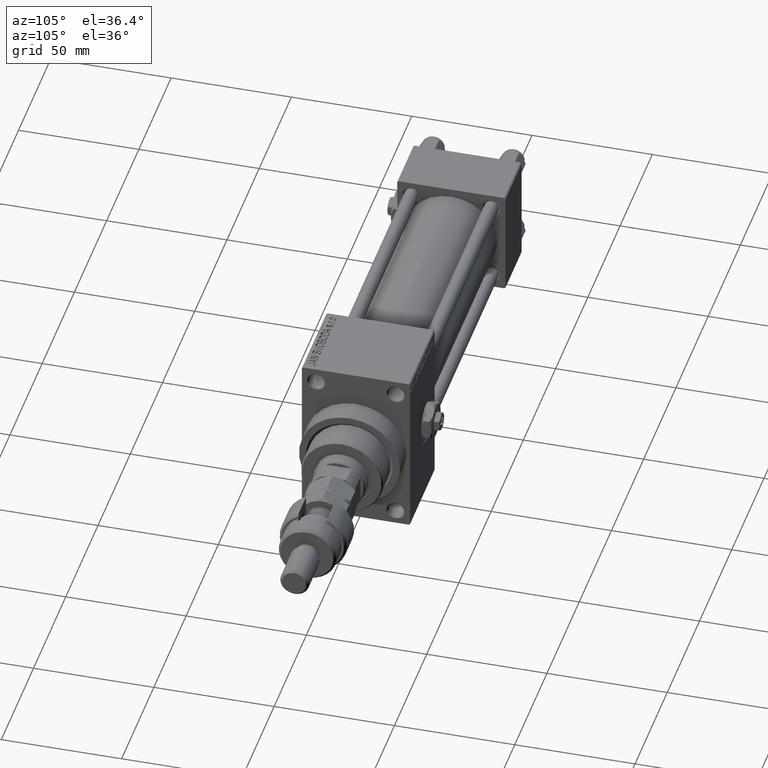
[diagram: clean part render]
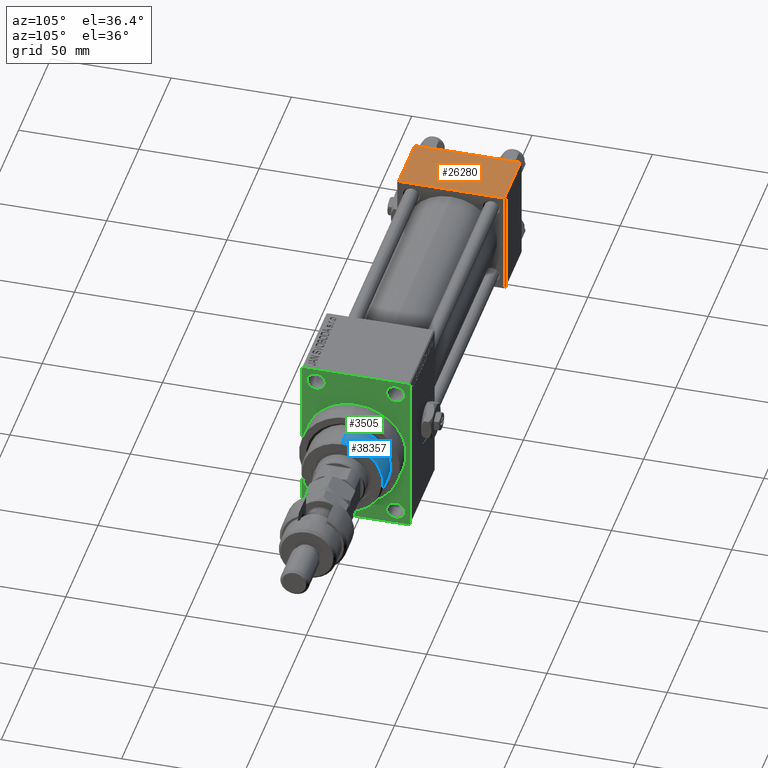
[diagram: same view with three faces highlighted in distinct colors, each labeled with its STEP entity id]
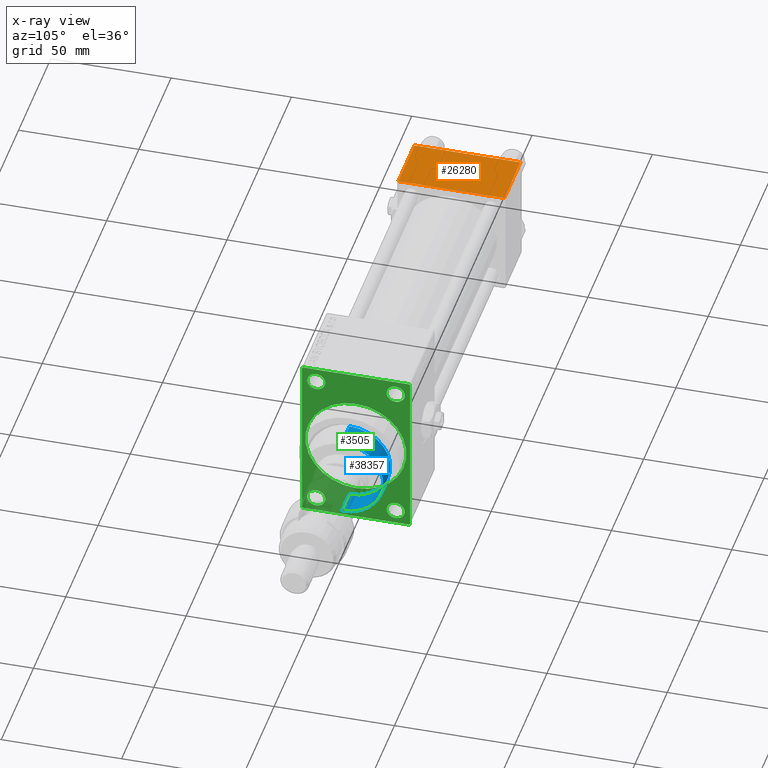
[diagram: x-ray of the same camera — body ghosted, the three highlighted faces saturated]
A machine part, auxiliary view with three faces highlighted in distinct colors.
The next image is the same camera in x-ray (body ghosted, the three faces saturated) — at least one of them is partly hidden behind the body in this view.
Their STEP definitions:

[orange] entity #26280 — the highlighted planar face has unit normal (0, 0, -1).
#1378 = CARTESIAN_POINT ( 'NONE',  ( 25.00000000000000000, 22.50000000000000000, 22.50000000000000355 ) ) ;
#1406 = ORIENTED_EDGE ( 'NONE', *, *, #24591, .T. ) ;
#1587 = CARTESIAN_POINT ( 'NONE',  ( 25.00000000000000000, 21.99999999999999289, 22.50000000000000355 ) ) ;
#2743 = DIRECTION ( 'NONE',  ( 0.000000000000000000, -1.000000000000000000, -7.709882115452476934E-17 ) ) ;
#3548 = CARTESIAN_POINT ( 'NONE',  ( 0.000000000000000000, 21.99999999999999289, 22.50000000000000355 ) ) ;
#5277 = LINE ( 'NONE', #1378, #32098 ) ;
#6695 = VERTEX_POINT ( 'NONE', #49053 ) ;
#6777 = EDGE_CURVE ( 'NONE', #47818, #6695, #41726, .T. ) ;
#7059 = ORIENTED_EDGE ( 'NONE', *, *, #26063, .T. ) ;
#7067 = CARTESIAN_POINT ( 'NONE',  ( 25.00000000000000000, 22.50000000000000000, 22.50000000000000355 ) ) ;
#8550 = ORIENTED_EDGE ( 'NONE', *, *, #6777, .T. ) ;
#10525 = EDGE_CURVE ( 'NONE', #31506, #26082, #5277, .T. ) ;
#11752 = FACE_OUTER_BOUND ( 'NONE', #24015, .T. ) ;
#13906 = CARTESIAN_POINT ( 'NONE',  ( 0.000000000000000000, 22.50000000000000000, 22.50000000000000355 ) ) ;
#13932 = VECTOR ( 'NONE', #26874, 1000.000000000000000 ) ;
#17231 = DIRECTION ( 'NONE',  ( 0.000000000000000000, -1.000000000000000000, -7.709882115452476934E-17 ) ) ;
#19341 = CARTESIAN_POINT ( 'NONE',  ( 25.00000000000000000, -21.99999999999999289, 22.50000000000000000 ) ) ;
#20868 = CARTESIAN_POINT ( 'NONE',  ( 25.00000000000000000, -21.99999999999997868, 22.50000000000000000 ) ) ;
#24012 = LINE ( 'NONE', #19341, #13932 ) ;
#24015 = EDGE_LOOP ( 'NONE', ( #8550, #7059, #38646, #1406 ) ) ;
#24591 = EDGE_CURVE ( 'NONE', #31506, #47818, #43247, .T. ) ;
#26063 = EDGE_CURVE ( 'NONE', #6695, #26082, #24012, .T. ) ;
#26082 = VERTEX_POINT ( 'NONE', #20868 ) ;
#26280 = ADVANCED_FACE ( 'NONE', ( #11752 ), #26562, .F. ) ;
#26562 = PLANE ( 'NONE',  #27226 ) ;
#26874 = DIRECTION ( 'NONE',  ( 1.000000000000000000, 0.000000000000000000, 0.000000000000000000 ) ) ;
#27226 = AXIS2_PLACEMENT_3D ( 'NONE', #7067, #47399, #31504 ) ;
#29662 = VECTOR ( 'NONE', #47691, 1000.000000000000000 ) ;
#31504 = DIRECTION ( 'NONE',  ( 0.000000000000000000, 1.000000000000000000, 7.709882115452476934E-17 ) ) ;
#31506 = VERTEX_POINT ( 'NONE', #1587 ) ;
#32098 = VECTOR ( 'NONE', #17231, 1000.000000000000000 ) ;
#35692 = CARTESIAN_POINT ( 'NONE',  ( 0.000000000000000000, 21.99999999999999289, 22.50000000000000355 ) ) ;
#38646 = ORIENTED_EDGE ( 'NONE', *, *, #10525, .F. ) ;
#41726 = LINE ( 'NONE', #13906, #48714 ) ;
#43247 = LINE ( 'NONE', #35692, #29662 ) ;
#47399 = DIRECTION ( 'NONE',  ( 0.000000000000000000, 7.709882115452476934E-17, -1.000000000000000000 ) ) ;
#47691 = DIRECTION ( 'NONE',  ( -1.000000000000000000, 0.000000000000000000, 0.000000000000000000 ) ) ;
#47818 = VERTEX_POINT ( 'NONE', #3548 ) ;
#48714 = VECTOR ( 'NONE', #2743, 1000.000000000000000 ) ;
#49053 = CARTESIAN_POINT ( 'NONE',  ( 0.000000000000000000, -21.99999999999997868, 22.50000000000000000 ) ) ;

[blue] entity #38357 — the highlighted cylindrical surface (partial cylindrical patch) has radius 17 mm, axis along (-1, 0, 0).
#1815 = CARTESIAN_POINT ( 'NONE',  ( 0.000000000000000000, 0.000000000000000000, 43.25999999999999801 ) ) ;
#2836 = ORIENTED_EDGE ( 'NONE', *, *, #49402, .T. ) ;
#3876 = CARTESIAN_POINT ( 'NONE',  ( 17.00000000000000000, 2.081899558550500280E-15, 55.26000000000000512 ) ) ;
#4194 = EDGE_CURVE ( 'NONE', #29231, #49220, #8785, .T. ) ;
#6485 = DIRECTION ( 'NONE',  ( 1.000000000000000000, 0.000000000000000000, 0.000000000000000000 ) ) ;
#6572 = CYLINDRICAL_SURFACE ( 'NONE', #35886, 17.00000000000000000 ) ;
#7084 = FACE_OUTER_BOUND ( 'NONE', #40685, .T. ) ;
#8685 = EDGE_CURVE ( 'NONE', #44914, #12318, #20457, .T. ) ;
#8785 = LINE ( 'NONE', #3876, #40314 ) ;
#9876 = EDGE_CURVE ( 'NONE', #29231, #44914, #16284, .T. ) ;
#12318 = VERTEX_POINT ( 'NONE', #29972 ) ;
#12686 = DIRECTION ( 'NONE',  ( -0.000000000000000000, -0.000000000000000000, -1.000000000000000000 ) ) ;
#14629 = DIRECTION ( 'NONE',  ( -0.000000000000000000, -0.000000000000000000, -1.000000000000000000 ) ) ;
#16284 = CIRCLE ( 'NONE', #18766, 17.00000000000000000 ) ;
#17996 = DIRECTION ( 'NONE',  ( 0.000000000000000000, 0.000000000000000000, -1.000000000000000000 ) ) ;
#18766 = AXIS2_PLACEMENT_3D ( 'NONE', #49493, #17996, #34379 ) ;
#19027 = ORIENTED_EDGE ( 'NONE', *, *, #9876, .T. ) ;
#20457 = LINE ( 'NONE', #44399, #28804 ) ;
#22931 = DIRECTION ( 'NONE',  ( -1.000000000000000000, 0.000000000000000000, 0.000000000000000000 ) ) ;
#26490 = AXIS2_PLACEMENT_3D ( 'NONE', #1815, #29609, #6485 ) ;
#28260 = DIRECTION ( 'NONE',  ( -0.000000000000000000, -0.000000000000000000, -1.000000000000000000 ) ) ;
#28804 = VECTOR ( 'NONE', #28260, 1000.000000000000000 ) ;
#29231 = VERTEX_POINT ( 'NONE', #50742 ) ;
#29609 = DIRECTION ( 'NONE',  ( 0.000000000000000000, 0.000000000000000000, 1.000000000000000000 ) ) ;
#29972 = CARTESIAN_POINT ( 'NONE',  ( -17.00000000000000000, 0.000000000000000000, 43.25999999999999801 ) ) ;
#34379 = DIRECTION ( 'NONE',  ( 1.000000000000000000, 0.000000000000000000, 0.000000000000000000 ) ) ;
#35886 = AXIS2_PLACEMENT_3D ( 'NONE', #50290, #14629, #22931 ) ;
#37658 = ORIENTED_EDGE ( 'NONE', *, *, #4194, .F. ) ;
#38357 = ADVANCED_FACE ( 'NONE', ( #7084 ), #6572, .T. ) ;
#40124 = ORIENTED_EDGE ( 'NONE', *, *, #8685, .T. ) ;
#40314 = VECTOR ( 'NONE', #12686, 1000.000000000000000 ) ;
#40685 = EDGE_LOOP ( 'NONE', ( #37658, #19027, #40124, #2836 ) ) ;
#44399 = CARTESIAN_POINT ( 'NONE',  ( -17.00000000000000000, 0.000000000000000000, 55.26000000000000512 ) ) ;
#44914 = VERTEX_POINT ( 'NONE', #45224 ) ;
#45224 = CARTESIAN_POINT ( 'NONE',  ( -17.00000000000000000, 0.000000000000000000, 54.76000000000001222 ) ) ;
#46090 = CARTESIAN_POINT ( 'NONE',  ( 17.00000000000000000, 2.081899558550500280E-15, 43.25999999999999801 ) ) ;
#48942 = CIRCLE ( 'NONE', #26490, 17.00000000000000000 ) ;
#49220 = VERTEX_POINT ( 'NONE', #46090 ) ;
#49402 = EDGE_CURVE ( 'NONE', #12318, #49220, #48942, .T. ) ;
#49493 = CARTESIAN_POINT ( 'NONE',  ( 0.000000000000000000, 0.000000000000000000, 54.76000000000001222 ) ) ;
#50290 = CARTESIAN_POINT ( 'NONE',  ( 0.000000000000000000, 0.000000000000000000, 55.26000000000000512 ) ) ;
#50742 = CARTESIAN_POINT ( 'NONE',  ( 17.00000000000000000, 2.081899558550500280E-15, 54.76000000000001222 ) ) ;

[green] entity #3505 — the highlighted planar face has unit normal (-1, 0, 0).
#384 = DIRECTION ( 'NONE',  ( 0.000000000000000000, 0.000000000000000000, 1.000000000000000000 ) ) ;
#603 = ORIENTED_EDGE ( 'NONE', *, *, #25641, .T. ) ;
#657 = CIRCLE ( 'NONE', #26354, 3.750000000000166533 ) ;
#849 = FACE_BOUND ( 'NONE', #49625, .T. ) ;
#976 = LINE ( 'NONE', #33185, #23213 ) ;
#1308 = LINE ( 'NONE', #37694, #29731 ) ;
#2557 = VECTOR ( 'NONE', #26852, 1000.000000000000114 ) ;
#2697 = CARTESIAN_POINT ( 'NONE',  ( 173.0000000000000284, 22.49999999999999645, -35.00000000000000000 ) ) ;
#2778 = VERTEX_POINT ( 'NONE', #44662 ) ;
#2866 = DIRECTION ( 'NONE',  ( 0.000000000000000000, 0.000000000000000000, -1.000000000000000000 ) ) ;
#3013 = AXIS2_PLACEMENT_3D ( 'NONE', #11165, #30409, #2866 ) ;
#3505 = ADVANCED_FACE ( 'NONE', ( #16454, #33060, #849, #36716, #36958, #8655 ), #24742, .F. ) ;
#3926 = CARTESIAN_POINT ( 'NONE',  ( 173.0000000000000284, -22.00000000000001776, 35.00000000000000000 ) ) ;
#4320 = VERTEX_POINT ( 'NONE', #5138 ) ;
#5138 = CARTESIAN_POINT ( 'NONE',  ( 173.0000000000000284, -16.50000000000000000, 32.75000000000017764 ) ) ;
#5381 = VERTEX_POINT ( 'NONE', #29228 ) ;
#5859 = DIRECTION ( 'NONE',  ( 1.000000000000000000, 0.000000000000000000, 0.000000000000000000 ) ) ;
#6123 = EDGE_CURVE ( 'NONE', #46934, #35979, #29546, .T. ) ;
#7290 = DIRECTION ( 'NONE',  ( 0.000000000000000000, 0.000000000000000000, 1.000000000000000000 ) ) ;
#7959 = ORIENTED_EDGE ( 'NONE', *, *, #22072, .T. ) ;
#8572 = DIRECTION ( 'NONE',  ( 0.000000000000000000, 0.000000000000000000, 1.000000000000000000 ) ) ;
#8655 = FACE_OUTER_BOUND ( 'NONE', #45171, .T. ) ;
#9003 = VECTOR ( 'NONE', #25663, 1000.000000000000114 ) ;
#9308 = LINE ( 'NONE', #49123, #9003 ) ;
#9787 = DIRECTION ( 'NONE',  ( 0.000000000000000000, -1.000000000000000000, 0.000000000000000000 ) ) ;
#9860 = ORIENTED_EDGE ( 'NONE', *, *, #16691, .T. ) ;
#10183 = VECTOR ( 'NONE', #19309, 1000.000000000000000 ) ;
#10474 = CARTESIAN_POINT ( 'NONE',  ( 173.0000000000000284, 16.50000000000000000, -25.24999999999982592 ) ) ;
#10495 = VECTOR ( 'NONE', #43301, 1000.000000000000000 ) ;
#10640 = ORIENTED_EDGE ( 'NONE', *, *, #30719, .T. ) ;
#10668 = CARTESIAN_POINT ( 'NONE',  ( 173.0000000000000284, -22.50000000000000355, 34.50000000000000000 ) ) ;
#11165 = CARTESIAN_POINT ( 'NONE',  ( 173.0000000000000284, 0.000000000000000000, 0.000000000000000000 ) ) ;
#11307 = VERTEX_POINT ( 'NONE', #15967 ) ;
#11380 = DIRECTION ( 'NONE',  ( 0.000000000000000000, 0.000000000000000000, -1.000000000000000000 ) ) ;
#11568 = LINE ( 'NONE', #27419, #10495 ) ;
#11861 = CARTESIAN_POINT ( 'NONE',  ( 173.0000000000000284, -16.50000000000000000, 25.24999999999984368 ) ) ;
#12234 = ORIENTED_EDGE ( 'NONE', *, *, #14520, .T. ) ;
#12489 = VERTEX_POINT ( 'NONE', #10474 ) ;
#12653 = CARTESIAN_POINT ( 'NONE',  ( 173.0000000000000284, 16.50000000000000000, 32.75000000000017764 ) ) ;
#13152 = AXIS2_PLACEMENT_3D ( 'NONE', #40168, #24039, #384 ) ;
#13497 = EDGE_CURVE ( 'NONE', #31485, #12489, #657, .T. ) ;
#14092 = ORIENTED_EDGE ( 'NONE', *, *, #13497, .T. ) ;
#14249 = DIRECTION ( 'NONE',  ( -0.000000000000000000, 0.7071067811865279218, 0.7071067811865671127 ) ) ;
#14410 = ORIENTED_EDGE ( 'NONE', *, *, #19555, .F. ) ;
#14520 = EDGE_CURVE ( 'NONE', #29206, #5381, #1308, .T. ) ;
#14666 = ORIENTED_EDGE ( 'NONE', *, *, #27482, .T. ) ;
#14896 = CARTESIAN_POINT ( 'NONE',  ( 173.0000000000000284, 21.99999999999999645, 35.00000000000000000 ) ) ;
#15751 = ORIENTED_EDGE ( 'NONE', *, *, #28650, .T. ) ;
#15967 = CARTESIAN_POINT ( 'NONE',  ( 173.0000000000000284, -16.50000000000000000, -25.24999999999982592 ) ) ;
#16371 = DIRECTION ( 'NONE',  ( -1.000000000000000000, -0.000000000000000000, -0.000000000000000000 ) ) ;
#16402 = AXIS2_PLACEMENT_3D ( 'NONE', #34598, #50498, #7290 ) ;
#16454 = FACE_BOUND ( 'NONE', #39761, .T. ) ;
#16667 = VERTEX_POINT ( 'NONE', #3926 ) ;
#16691 = EDGE_CURVE ( 'NONE', #49692, #11307, #24822, .T. ) ;
#16771 = CARTESIAN_POINT ( 'NONE',  ( 173.0000000000000284, 22.49999999999999645, -34.50000000000000000 ) ) ;
#17022 = CARTESIAN_POINT ( 'NONE',  ( 173.0000000000000284, 16.50000000000000000, 25.24999999999983658 ) ) ;
#17209 = VERTEX_POINT ( 'NONE', #16771 ) ;
#17788 = EDGE_CURVE ( 'NONE', #28916, #16667, #976, .T. ) ;
#17814 = CARTESIAN_POINT ( 'NONE',  ( 173.0000000000000284, 0.000000000000000000, 0.000000000000000000 ) ) ;
#18327 = ORIENTED_EDGE ( 'NONE', *, *, #33268, .T. ) ;
#19062 = CIRCLE ( 'NONE', #45640, 3.750000000000166533 ) ;
#19309 = DIRECTION ( 'NONE',  ( 0.000000000000000000, -1.000000000000000000, 0.000000000000000000 ) ) ;
#19555 = EDGE_CURVE ( 'NONE', #35979, #46934, #35779, .T. ) ;
#20031 = DIRECTION ( 'NONE',  ( -1.000000000000000000, -0.000000000000000000, -0.000000000000000000 ) ) ;
#20103 = DIRECTION ( 'NONE',  ( 0.000000000000000000, 0.000000000000000000, 1.000000000000000000 ) ) ;
#20413 = EDGE_LOOP ( 'NONE', ( #47319, #14410 ) ) ;
#20582 = AXIS2_PLACEMENT_3D ( 'NONE', #39557, #49678, #21812 ) ;
#21130 = AXIS2_PLACEMENT_3D ( 'NONE', #28894, #40626, #40375 ) ;
#21561 = CIRCLE ( 'NONE', #39044, 3.750000000000169642 ) ;
#21812 = DIRECTION ( 'NONE',  ( 0.000000000000000000, 0.000000000000000000, 1.000000000000000000 ) ) ;
#21849 = ORIENTED_EDGE ( 'NONE', *, *, #38679, .F. ) ;
#22012 = CARTESIAN_POINT ( 'NONE',  ( 173.0000000000000284, -16.50000000000000000, -32.75000000000017053 ) ) ;
#22072 = EDGE_CURVE ( 'NONE', #26680, #17209, #49904, .T. ) ;
#22283 = CIRCLE ( 'NONE', #13152, 3.750000000000166533 ) ;
#23213 = VECTOR ( 'NONE', #9787, 1000.000000000000000 ) ;
#23435 = EDGE_CURVE ( 'NONE', #16667, #29206, #11568, .T. ) ;
#24039 = DIRECTION ( 'NONE',  ( -1.000000000000000000, -0.000000000000000000, -0.000000000000000000 ) ) ;
#24676 = DIRECTION ( 'NONE',  ( 0.000000000000000000, 0.000000000000000000, 1.000000000000000000 ) ) ;
#24742 = PLANE ( 'NONE',  #21130 ) ;
#24822 = CIRCLE ( 'NONE', #26508, 3.750000000000166533 ) ;
#24850 = EDGE_CURVE ( 'NONE', #44965, #4320, #33821, .T. ) ;
#25077 = VECTOR ( 'NONE', #11380, 1000.000000000000000 ) ;
#25164 = ORIENTED_EDGE ( 'NONE', *, *, #39336, .F. ) ;
#25641 = EDGE_CURVE ( 'NONE', #36385, #30888, #33852, .T. ) ;
#25663 = DIRECTION ( 'NONE',  ( 0.000000000000000000, 0.7071067811865474617, -0.7071067811865474617 ) ) ;
#26354 = AXIS2_PLACEMENT_3D ( 'NONE', #43695, #16371, #8572 ) ;
#26508 = AXIS2_PLACEMENT_3D ( 'NONE', #32496, #20031, #24676 ) ;
#26680 = VERTEX_POINT ( 'NONE', #40275 ) ;
#26790 = DIRECTION ( 'NONE',  ( 0.000000000000000000, 0.000000000000000000, 1.000000000000000000 ) ) ;
#26852 = DIRECTION ( 'NONE',  ( 0.000000000000000000, -0.7071067811865474617, 0.7071067811865474617 ) ) ;
#27142 = ORIENTED_EDGE ( 'NONE', *, *, #23435, .T. ) ;
#27224 = LINE ( 'NONE', #39456, #25077 ) ;
#27419 = CARTESIAN_POINT ( 'NONE',  ( 173.0000000000000284, -22.50000000000000355, 34.50000000000000000 ) ) ;
#27482 = EDGE_CURVE ( 'NONE', #5381, #44226, #9308, .T. ) ;
#28292 = ORIENTED_EDGE ( 'NONE', *, *, #24850, .T. ) ;
#28307 = CIRCLE ( 'NONE', #46595, 3.750000000000166533 ) ;
#28650 = EDGE_CURVE ( 'NONE', #11307, #49692, #22283, .T. ) ;
#28894 = CARTESIAN_POINT ( 'NONE',  ( 173.0000000000000284, 0.000000000000000000, 0.000000000000000000 ) ) ;
#28916 = VERTEX_POINT ( 'NONE', #14896 ) ;
#29206 = VERTEX_POINT ( 'NONE', #10668 ) ;
#29228 = CARTESIAN_POINT ( 'NONE',  ( 173.0000000000000284, -22.50000000000000355, -34.50000000000000000 ) ) ;
#29546 = CIRCLE ( 'NONE', #3013, 21.00000000000000000 ) ;
#29731 = VECTOR ( 'NONE', #33791, 1000.000000000000000 ) ;
#30409 = DIRECTION ( 'NONE',  ( 1.000000000000000000, 0.000000000000000000, 0.000000000000000000 ) ) ;
#30719 = EDGE_CURVE ( 'NONE', #30888, #36385, #21561, .T. ) ;
#30888 = VERTEX_POINT ( 'NONE', #12653 ) ;
#31485 = VERTEX_POINT ( 'NONE', #37975 ) ;
#32176 = EDGE_CURVE ( 'NONE', #2778, #28916, #38322, .T. ) ;
#32428 = CARTESIAN_POINT ( 'NONE',  ( 173.0000000000000284, 0.000000000000000000, 21.00000000000000000 ) ) ;
#32496 = CARTESIAN_POINT ( 'NONE',  ( 173.0000000000000284, -16.50000000000000000, -28.99999999999999289 ) ) ;
#32630 = EDGE_CURVE ( 'NONE', #12489, #31485, #28307, .T. ) ;
#32692 = CARTESIAN_POINT ( 'NONE',  ( 173.0000000000000284, 2.571758278209441661E-15, -21.00000000000000000 ) ) ;
#33060 = FACE_BOUND ( 'NONE', #40918, .T. ) ;
#33185 = CARTESIAN_POINT ( 'NONE',  ( 173.0000000000000284, 22.49999999999999645, 35.00000000000000000 ) ) ;
#33268 = EDGE_CURVE ( 'NONE', #4320, #44965, #19062, .T. ) ;
#33791 = DIRECTION ( 'NONE',  ( 0.000000000000000000, 0.000000000000000000, -1.000000000000000000 ) ) ;
#33821 = CIRCLE ( 'NONE', #16402, 3.750000000000166533 ) ;
#33852 = CIRCLE ( 'NONE', #20582, 3.750000000000169642 ) ;
#34598 = CARTESIAN_POINT ( 'NONE',  ( 173.0000000000000284, -16.50000000000000000, 29.00000000000000711 ) ) ;
#35444 = CARTESIAN_POINT ( 'NONE',  ( 173.0000000000000284, -21.99999999999998934, -35.00000000000000000 ) ) ;
#35779 = CIRCLE ( 'NONE', #43236, 21.00000000000000000 ) ;
#35979 = VERTEX_POINT ( 'NONE', #32692 ) ;
#35987 = ORIENTED_EDGE ( 'NONE', *, *, #32176, .T. ) ;
#36385 = VERTEX_POINT ( 'NONE', #17022 ) ;
#36716 = FACE_BOUND ( 'NONE', #43092, .T. ) ;
#36958 = FACE_BOUND ( 'NONE', #20413, .T. ) ;
#37694 = CARTESIAN_POINT ( 'NONE',  ( 173.0000000000000284, -22.50000000000000355, 35.00000000000000000 ) ) ;
#37975 = CARTESIAN_POINT ( 'NONE',  ( 173.0000000000000284, 16.50000000000000000, -32.75000000000017053 ) ) ;
#38322 = LINE ( 'NONE', #42730, #2557 ) ;
#38679 = EDGE_CURVE ( 'NONE', #2778, #17209, #27224, .T. ) ;
#39044 = AXIS2_PLACEMENT_3D ( 'NONE', #46497, #49907, #41801 ) ;
#39336 = EDGE_CURVE ( 'NONE', #26680, #44226, #46898, .T. ) ;
#39456 = CARTESIAN_POINT ( 'NONE',  ( 173.0000000000000284, 22.49999999999999645, 35.00000000000000000 ) ) ;
#39537 = CARTESIAN_POINT ( 'NONE',  ( 173.0000000000000284, 16.50000000000000000, -28.99999999999999289 ) ) ;
#39557 = CARTESIAN_POINT ( 'NONE',  ( 173.0000000000000284, 16.50000000000000000, 29.00000000000000355 ) ) ;
#39761 = EDGE_LOOP ( 'NONE', ( #28292, #18327 ) ) ;
#40168 = CARTESIAN_POINT ( 'NONE',  ( 173.0000000000000284, -16.50000000000000000, -28.99999999999999289 ) ) ;
#40275 = CARTESIAN_POINT ( 'NONE',  ( 173.0000000000000284, 22.00000000000002132, -35.00000000000000000 ) ) ;
#40375 = DIRECTION ( 'NONE',  ( -0.000000000000000000, 0.000000000000000000, 1.000000000000000000 ) ) ;
#40626 = DIRECTION ( 'NONE',  ( -1.000000000000000000, 0.000000000000000000, -0.000000000000000000 ) ) ;
#40918 = EDGE_LOOP ( 'NONE', ( #9860, #15751 ) ) ;
#41801 = DIRECTION ( 'NONE',  ( 0.000000000000000000, 0.000000000000000000, 1.000000000000000000 ) ) ;
#42730 = CARTESIAN_POINT ( 'NONE',  ( 173.0000000000000284, 21.99999999999999645, 35.00000000000000000 ) ) ;
#43092 = EDGE_LOOP ( 'NONE', ( #603, #10640 ) ) ;
#43236 = AXIS2_PLACEMENT_3D ( 'NONE', #17814, #5859, #48807 ) ;
#43301 = DIRECTION ( 'NONE',  ( -0.000000000000000000, -0.7071067811865279218, -0.7071067811865671127 ) ) ;
#43695 = CARTESIAN_POINT ( 'NONE',  ( 173.0000000000000284, 16.50000000000000000, -28.99999999999999289 ) ) ;
#43783 = CARTESIAN_POINT ( 'NONE',  ( 173.0000000000000284, -16.50000000000000000, 29.00000000000000711 ) ) ;
#44226 = VERTEX_POINT ( 'NONE', #35444 ) ;
#44662 = CARTESIAN_POINT ( 'NONE',  ( 173.0000000000000284, 22.49999999999999645, 34.50000000000000000 ) ) ;
#44786 = ORIENTED_EDGE ( 'NONE', *, *, #32630, .T. ) ;
#44952 = CARTESIAN_POINT ( 'NONE',  ( 173.0000000000000284, 22.49999999999999645, -34.50000000000000000 ) ) ;
#44965 = VERTEX_POINT ( 'NONE', #11861 ) ;
#45171 = EDGE_LOOP ( 'NONE', ( #12234, #14666, #25164, #7959, #21849, #35987, #48492, #27142 ) ) ;
#45640 = AXIS2_PLACEMENT_3D ( 'NONE', #43783, #47180, #20103 ) ;
#46497 = CARTESIAN_POINT ( 'NONE',  ( 173.0000000000000284, 16.50000000000000000, 29.00000000000000355 ) ) ;
#46595 = AXIS2_PLACEMENT_3D ( 'NONE', #39537, #51011, #26790 ) ;
#46898 = LINE ( 'NONE', #2697, #10183 ) ;
#46934 = VERTEX_POINT ( 'NONE', #32428 ) ;
#47180 = DIRECTION ( 'NONE',  ( -1.000000000000000000, -0.000000000000000000, -0.000000000000000000 ) ) ;
#47319 = ORIENTED_EDGE ( 'NONE', *, *, #6123, .F. ) ;
#48492 = ORIENTED_EDGE ( 'NONE', *, *, #17788, .T. ) ;
#48807 = DIRECTION ( 'NONE',  ( 0.000000000000000000, 0.000000000000000000, -1.000000000000000000 ) ) ;
#49123 = CARTESIAN_POINT ( 'NONE',  ( 173.0000000000000284, -22.00000000000000355, -35.00000000000000000 ) ) ;
#49530 = VECTOR ( 'NONE', #14249, 1000.000000000000000 ) ;
#49625 = EDGE_LOOP ( 'NONE', ( #14092, #44786 ) ) ;
#49678 = DIRECTION ( 'NONE',  ( -1.000000000000000000, -0.000000000000000000, -0.000000000000000000 ) ) ;
#49692 = VERTEX_POINT ( 'NONE', #22012 ) ;
#49904 = LINE ( 'NONE', #44952, #49530 ) ;
#49907 = DIRECTION ( 'NONE',  ( -1.000000000000000000, -0.000000000000000000, -0.000000000000000000 ) ) ;
#50498 = DIRECTION ( 'NONE',  ( -1.000000000000000000, -0.000000000000000000, -0.000000000000000000 ) ) ;
#51011 = DIRECTION ( 'NONE',  ( -1.000000000000000000, -0.000000000000000000, -0.000000000000000000 ) ) ;